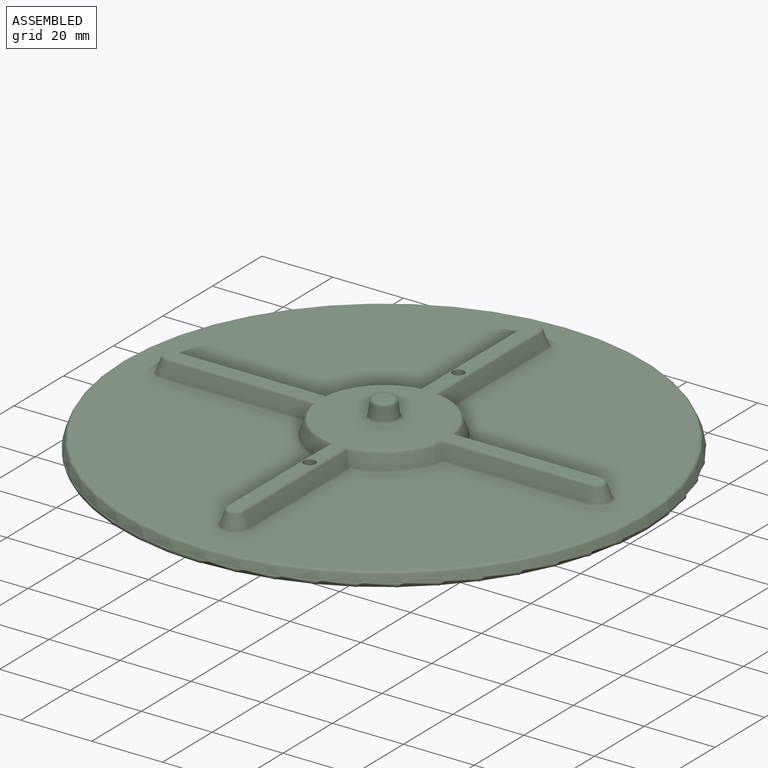
[diagram: assembled view]
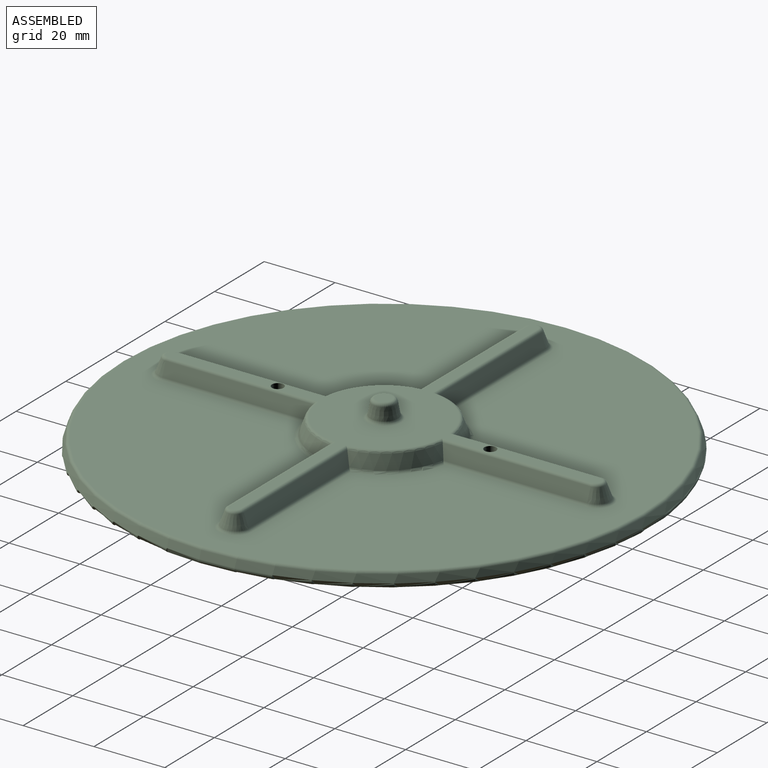
[diagram: assembled view, second angle]
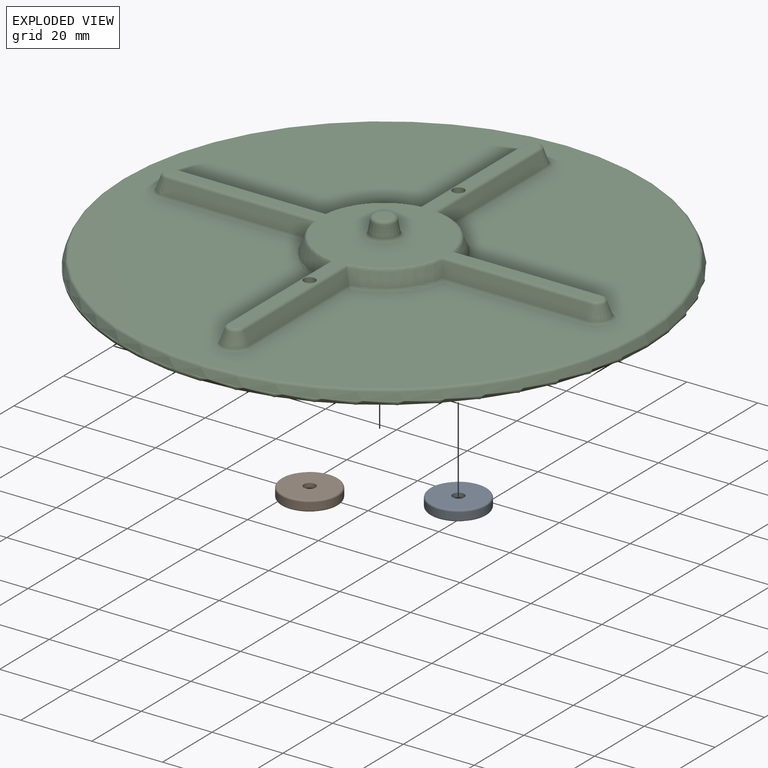
[diagram: exploded view]
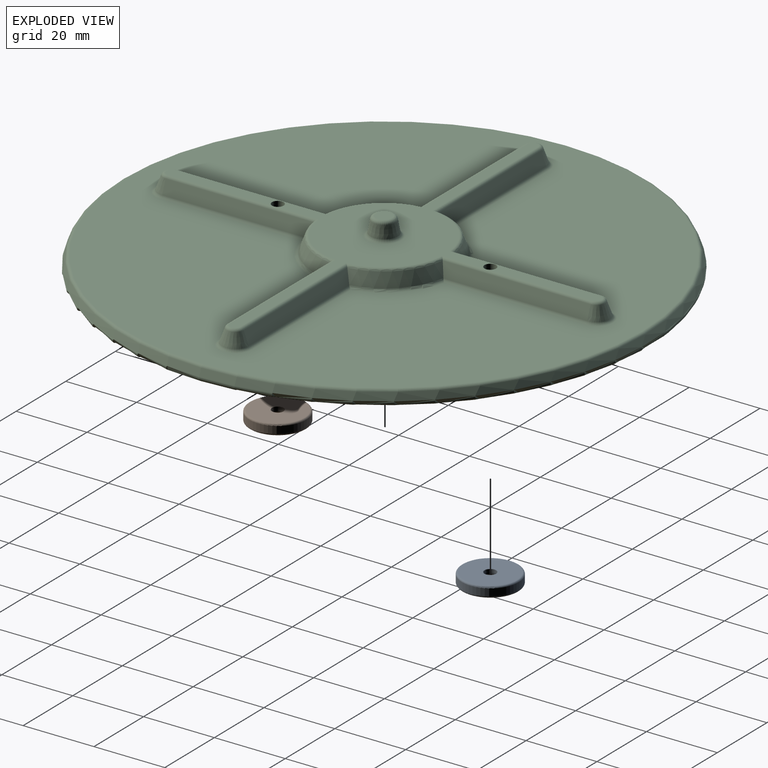
[diagram: exploded view, second angle]
ASSEMBLY  parts=3 mates=2
PART A: 8 faces, bbox 17.3x17.3x3 mm
  f0: cylinder r=8mm len=16mm, axis (0,0,1), area 100.5mm2, adj f6,f7
  f1: plane 15x15mm, normal (0,0,-1), area 136.7mm2, adj f5,f7
  f2: plane 15x15mm, normal (0,0,1), area 168.2mm2, adj f3,f6
  f3: cylinder r=1.65mm len=3.3mm, axis (0,0,-1), area 13.4mm2, adj f2,f4
  f4: cone r=1.65mm half-angle=45deg, axis (0,0,-1), area 33.8mm2, adj f3,f5
  f5: torus R=3.57mm, axis (0,0,-1), area 8.3mm2, adj f1,f4
  f6: torus R=7.5mm, axis (0,0,-1), area 38.6mm2, adj f0,f2
  f7: torus R=7.5mm, axis (0,0,-1), area 38.6mm2, adj f0,f1
PART B: same geometry as A
PART C: 67 faces, bbox 161.5x161.5x14 mm
  f0: plane 122.96x58.54mm, normal (0,0,1), area 1211.1mm2, adj f1,f2,f4,f5,f33,f51,f52,f53
  f1: cylinder r=1mm len=42.58mm, axis (0,1,0), area 51.3mm2, adj f0,f13,f18,f51,f54,f66
  f2: cylinder r=1mm len=42.58mm, axis (0,1,0), area 51.3mm2, adj f0,f13,f17,f54,f57,f66
  f3: plane 30.75x2.96mm, normal (0,0,1), area 88.1mm2, adj f4,f5,f59,f65
  f4: cylinder r=1mm len=42.58mm, axis (0,-1,0), area 51.3mm2, adj f0,f3,f23,f56,f59,f65
  f5: cylinder r=1mm len=42.58mm, axis (0,-1,0), area 51.3mm2, adj f0,f3,f24,f59,f62,f65
  f6: plane 147.14x147.14mm, normal (0,0,-1), area 15843.8mm2, adj f28,f29,f30,f31,f63
  f7: cone r=20mm half-angle=20deg, axis (0,0,-1), area 93.3mm2, adj f21,f23,f42,f56
  f8: cone r=20mm half-angle=20deg, axis (0,0,-1), area 93.3mm2, adj f18,f20,f35,f51
  f9: cone r=20mm half-angle=20deg, axis (0,0,-1), area 93.3mm2, adj f15,f17,f43,f57
  f10: cone r=20mm half-angle=20deg, axis (0,0,-1), area 93.3mm2, adj f14,f24,f50,f62
  f11: cone r=75mm half-angle=20deg, axis (0,0,-1), area 991.6mm2, adj f63,f64
  f12: plane 145.69x145.69mm, normal (0,0,1), area 13700.6mm2, adj f35,f36,f37,f38,f39,f40,f41,f42
  f13: plane 30.75x2.96mm, normal (0,0,1), area 88.1mm2, adj f1,f2,f54,f66
  f14: plane 41.78x3.72mm, normal (0,-0.94,0.34), area 161.4mm2, adj f10,f16,f49,f61
  f15: plane 41.78x3.72mm, normal (0,0.94,0.34), area 161.4mm2, adj f9,f16,f45,f58
  f16: cone r=4mm half-angle=20deg, axis (0,0,-1), area 38.1mm2, adj f14,f15,f47,f60
  f17: plane 41.78x3.72mm, normal (0.94,0,0.34), area 161.4mm2, adj f2,f9,f19,f41
  f18: plane 41.78x3.72mm, normal (-0.94,0,0.34), area 161.4mm2, adj f1,f8,f19,f37
  f19: cone r=4mm half-angle=20deg, axis (0,0,-1), area 38.1mm2, adj f17,f18,f39,f54
  f20: plane 41.78x3.72mm, normal (0,0.94,0.34), area 161.4mm2, adj f8,f22,f36,f52
  f21: plane 41.78x3.72mm, normal (0,-0.94,0.34), area 161.4mm2, adj f7,f22,f40,f55
  f22: cone r=4mm half-angle=20deg, axis (0,0,-1), area 38.1mm2, adj f20,f21,f38,f53
  f23: plane 41.78x3.72mm, normal (-0.94,0,0.34), area 161.4mm2, adj f4,f7,f25,f44
  f24: plane 41.78x3.72mm, normal (0.94,0,0.34), area 161.4mm2, adj f5,f10,f25,f48
  f25: cone r=4mm half-angle=20deg, axis (0,0,-1), area 38.1mm2, adj f23,f24,f46,f59
  f26: cone r=4mm half-angle=10deg, axis (0,0,-1), area 76mm2, adj f33,f34
  f27: plane 4.56x4.56mm, normal (0,0,1), area 16.3mm2, adj f34
  f28: cylinder r=8mm len=16mm, axis (0,0,-1), area 75.4mm2, adj f6,f29,f31,f32
  f29: plane 60x3mm, normal (-1,0,0), area 180mm2, adj f6,f28,f30,f32
  f30: cylinder r=8mm len=16mm, axis (0,0,-1), area 75.4mm2, adj f6,f29,f31,f32
  f31: plane 60x3mm, normal (1,0,0), area 180mm2, adj f6,f28,f30,f32
  f32: plane 76x16mm, normal (0,0,-1), area 1144mm2, adj f28,f29,f30,f31,f65,f66
  f33: torus R=4.84mm, axis (0,0,1), area 37.3mm2, adj f0,f26
  f34: torus R=2.28mm, axis (0,0,1), area 25.2mm2, adj f26,f27
  f35: torus R=20.7mm, axis (0,0,1), area 28.4mm2, adj f8,f12,f36,f37
  f36: cylinder r=1mm len=40.6mm, axis (1,0,0), area 49.2mm2, adj f12,f20,f35,f38
  f37: cylinder r=1mm len=40.6mm, axis (0,-1,0), area 49.2mm2, adj f12,f18,f35,f39
  f38: torus R=4.7mm, axis (0,0,1), area 16mm2, adj f12,f22,f36,f40
  f39: torus R=4.7mm, axis (0,0,1), area 16mm2, adj f12,f19,f37,f41
  f40: cylinder r=1mm len=40.6mm, axis (1,0,0), area 49.2mm2, adj f12,f21,f38,f42
  f41: cylinder r=1mm len=40.6mm, axis (0,-1,0), area 49.2mm2, adj f12,f17,f39,f43
  f42: torus R=20.7mm, axis (0,0,1), area 28.4mm2, adj f7,f12,f40,f44
  f43: torus R=20.7mm, axis (0,0,1), area 28.4mm2, adj f9,f12,f41,f45
  f44: cylinder r=1mm len=40.6mm, axis (0,1,0), area 49.2mm2, adj f12,f23,f42,f46
  f45: cylinder r=1mm len=40.6mm, axis (-1,0,0), area 49.2mm2, adj f12,f15,f43,f47
  f46: torus R=4.7mm, axis (0,0,1), area 16mm2, adj f12,f25,f44,f48
  f47: torus R=4.7mm, axis (0,0,1), area 16mm2, adj f12,f16,f45,f49
  f48: cylinder r=1mm len=40.6mm, axis (0,1,0), area 49.2mm2, adj f12,f24,f46,f50
  f49: cylinder r=1mm len=40.6mm, axis (-1,0,0), area 49.2mm2, adj f12,f14,f47,f50
  f50: torus R=20.7mm, axis (0,0,1), area 28.4mm2, adj f10,f12,f48,f49
  f51: torus R=17.48mm, axis (0,0,1), area 29.6mm2, adj f0,f1,f8,f52
  f52: cylinder r=1mm len=42.58mm, axis (-1,0,0), area 51.4mm2, adj f0,f20,f51,f53
  f53: torus R=1.48mm, axis (0,0,1), area 7.7mm2, adj f0,f22,f52,f55
  f54: torus R=1.48mm, axis (0,0,1), area 7.7mm2, adj f1,f2,f13,f19
  f55: cylinder r=1mm len=42.58mm, axis (-1,0,0), area 51.4mm2, adj f0,f21,f53,f56
  f56: torus R=17.48mm, axis (0,0,1), area 29.6mm2, adj f0,f4,f7,f55
  f57: torus R=17.48mm, axis (0,0,1), area 29.6mm2, adj f0,f2,f9,f58
  f58: cylinder r=1mm len=42.58mm, axis (1,0,0), area 51.4mm2, adj f0,f15,f57,f60
  f59: torus R=1.48mm, axis (0,0,1), area 7.7mm2, adj f3,f4,f5,f25
  f60: torus R=1.48mm, axis (0,0,1), area 7.7mm2, adj f0,f16,f58,f61
  f61: cylinder r=1mm len=42.58mm, axis (1,0,0), area 51.4mm2, adj f0,f14,f60,f62
  f62: torus R=17.48mm, axis (0,0,1), area 29.6mm2, adj f0,f5,f10,f61
  f63: torus R=73.57mm, axis (0,0,1), area 895.9mm2, adj f6,f11
  f64: torus R=72.84mm, axis (0,0,1), area 563.3mm2, adj f11,f12
  f65: cylinder r=1.65mm len=6mm, axis (0,0,-1), area 62.2mm2, adj f0,f3,f4,f5,f32
  f66: cylinder r=1.65mm len=6mm, axis (0,0,-1), area 62.2mm2, adj f0,f1,f2,f13,f32
PLACE A t=(0,57.9,-22.27)mm
PLACE B t=(0,-2.1,-22.27)mm
PLACE C t=(0,-2.1,-22.27)mm fixed
MATE fastened B.f0 <-> C.f30  axis (0,0,1) through (0,-32.1,-19.27)mm
MATE fastened C.f28 <-> A.f0  axis (0,0,-1) through (0,27.9,-19.27)mm
